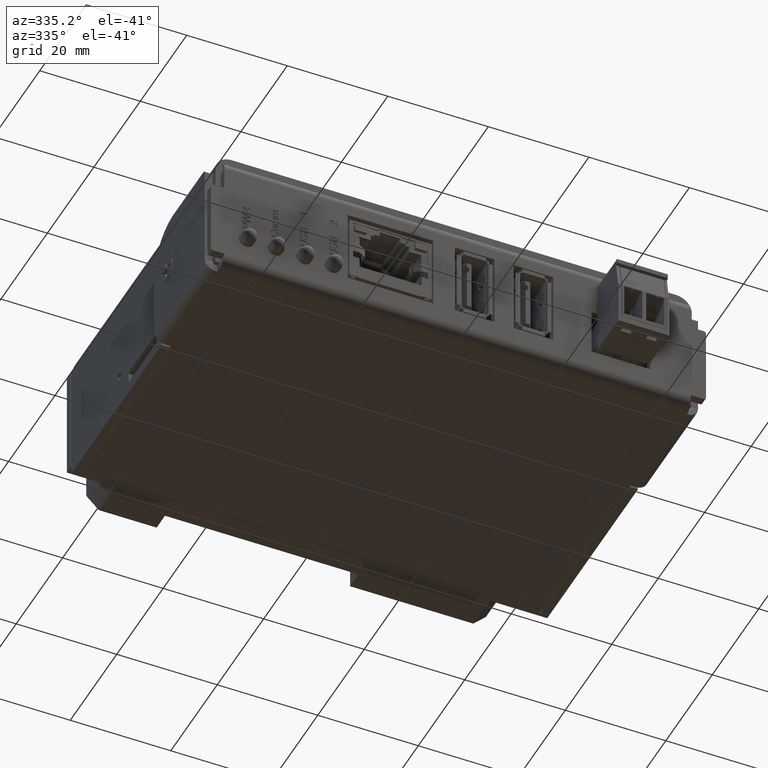
[diagram: clean part render]
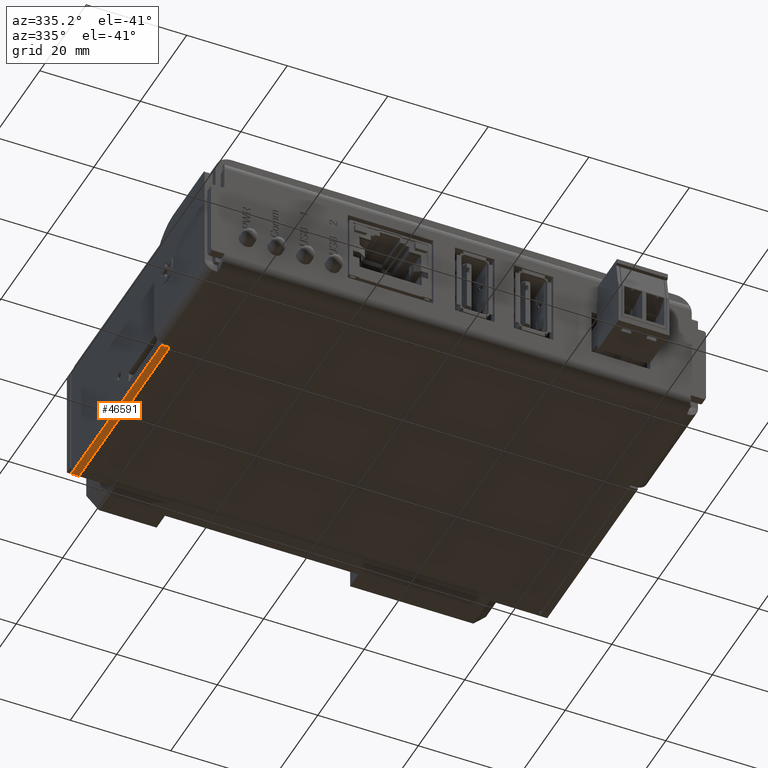
[diagram: same view with one face highlighted and labeled with its STEP entity id]
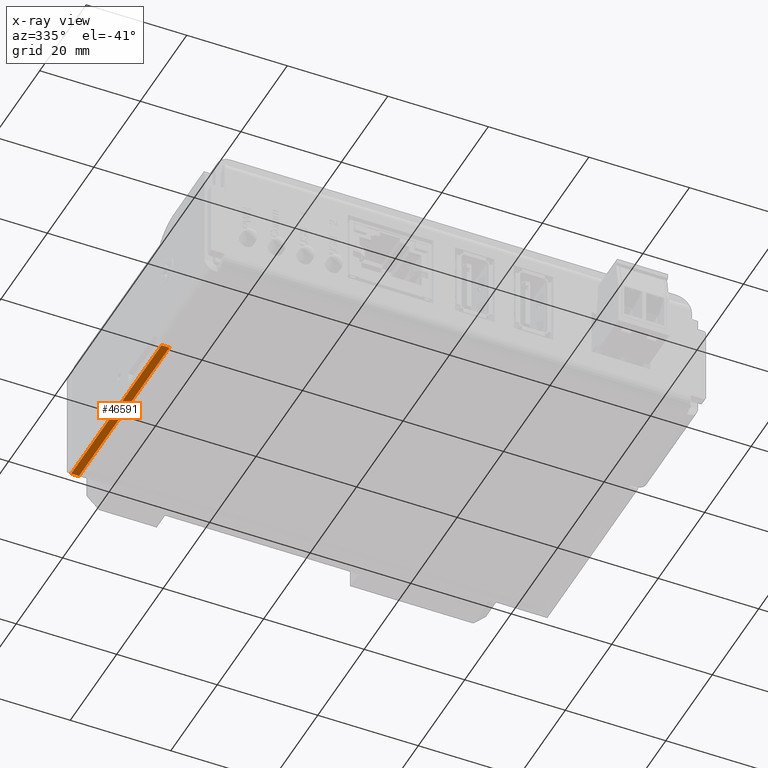
[diagram: x-ray of the same camera — body ghosted, the highlighted face saturated]
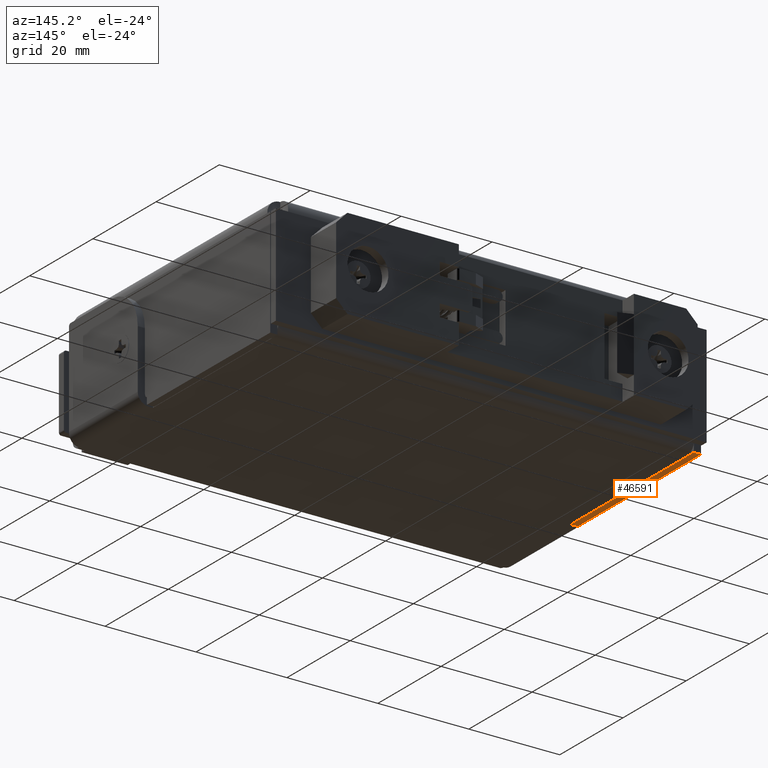
[diagram: same view with one face highlighted and labeled with its STEP entity id]
A machine part, auxiliary view. The second image highlights one B-rep face of the part: STEP entity #46591.
The next image is the same camera in x-ray: the body ghosted, the highlighted face saturated — about 0% of this face is hidden behind the body in this view.
A second angle (auxiliary view) of the same face is appended — the face is thin or edge-on in the first view.
In plain terms, the highlighted planar face has unit normal (-0, -0, -1).
Its self-contained STEP definition (entity closure, byte-faithful):
#878=PLANE('',#48963);
#4177=FACE_OUTER_BOUND('',#6780,.T.);
#6780=EDGE_LOOP('',(#34426,#34427,#34428,#34429));
#9769=LINE('',#70733,#14914);
#9789=LINE('',#70777,#14934);
#9790=LINE('',#70780,#14935);
#9791=LINE('',#70781,#14936);
#14914=VECTOR('',#53201,0.393700787401575);
#14934=VECTOR('',#53235,0.393700787401575);
#14935=VECTOR('',#53238,0.393700787401575);
#14936=VECTOR('',#53239,0.393700787401575);
#21121=VERTEX_POINT('',#70730);
#21122=VERTEX_POINT('',#70732);
#21139=VERTEX_POINT('',#70775);
#21140=VERTEX_POINT('',#70779);
#26031=EDGE_CURVE('',#21122,#21121,#9769,.T.);
#26053=EDGE_CURVE('',#21139,#21121,#9789,.T.);
#26054=EDGE_CURVE('',#21140,#21139,#9790,.T.);
#26055=EDGE_CURVE('',#21122,#21140,#9791,.T.);
#34426=ORIENTED_EDGE('',*,*,#26031,.T.);
#34427=ORIENTED_EDGE('',*,*,#26053,.F.);
#34428=ORIENTED_EDGE('',*,*,#26054,.F.);
#34429=ORIENTED_EDGE('',*,*,#26055,.F.);
#46591=ADVANCED_FACE('',(#4177),#878,.T.);
#48963=AXIS2_PLACEMENT_3D('',#70778,#53236,#53237);
#53201=DIRECTION('',(-1.,0.,-1.73333694994851E-32));
#53235=DIRECTION('',(-4.83037991275702E-47,1.,-2.90045765183322E-15));
#53236=DIRECTION('center_axis',(-1.73333694994851E-32,2.90045765183322E-15,
1.));
#53237=DIRECTION('ref_axis',(1.,0.,1.73333694994851E-32));
#53238=DIRECTION('',(-1.,-2.81997212249213E-15,8.16187635113919E-30));
#53239=DIRECTION('',(4.83037991275702E-47,-1.,2.90045765183322E-15));
#70730=CARTESIAN_POINT('',(-1.865,0.344592125774818,1.067));
#70732=CARTESIAN_POINT('',(-1.803,0.344592125774818,1.067));
#70733=CARTESIAN_POINT('',(-1.8185,0.344592125774818,1.067));
#70775=CARTESIAN_POINT('',(-1.865,-1.19012598425197,1.067));
#70777=CARTESIAN_POINT('',(-1.865,-0.0331818899208548,1.067));
#70778=CARTESIAN_POINT('Origin',(-1.834,-0.418829921364559,1.067));
#70779=CARTESIAN_POINT('',(-1.803,-1.19012598425197,1.067));
#70780=CARTESIAN_POINT('',(-1.8495,-1.19012598425197,1.067));
#70781=CARTESIAN_POINT('',(-1.803,-0.804477952808264,1.067));